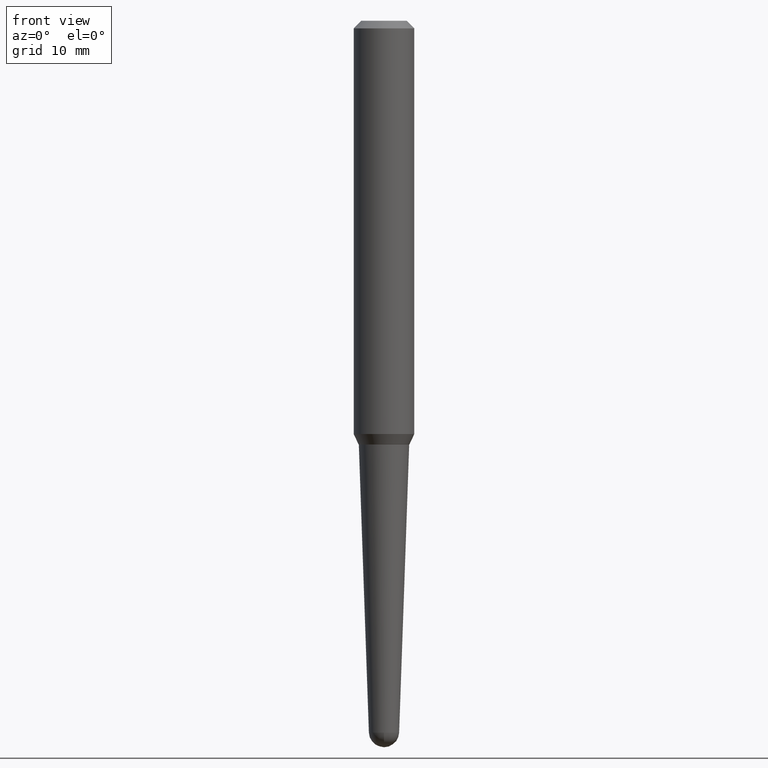
[diagram: clean part render]
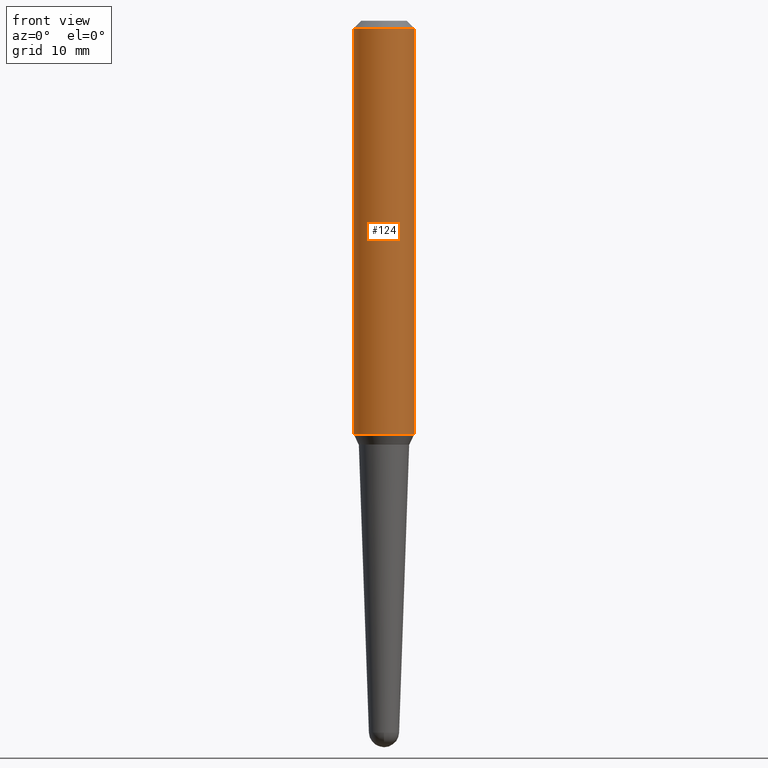
[diagram: same view with one face highlighted and labeled with its STEP entity id]
A machine part, front view. The second image highlights one B-rep face of the part: STEP entity #124.
In plain terms, the highlighted cylindrical surface (edge-blend (fillet) strip) has radius 3.175 mm, axis along (-0, 0, 1).
Its self-contained STEP definition (entity closure, byte-faithful):
#20 = VECTOR ( 'NONE', #116, 39.37007874015748143 ) ;
#22 = CARTESIAN_POINT ( 'NONE',  ( 0.1250000000000001943, -6.831515564972978588E-15, -1.706623822952039404 ) ) ;
#31 = ORIENTED_EDGE ( 'NONE', *, *, #47, .F. ) ;
#43 = DIRECTION ( 'NONE',  ( -2.445468806185136597E-29, 3.491481338843145583E-15, 1.000000000000000000 ) ) ;
#47 = EDGE_CURVE ( 'NONE', #313, #388, #54, .T. ) ;
#51 = EDGE_CURVE ( 'NONE', #136, #376, #429, .T. ) ;
#54 = CIRCLE ( 'NONE', #147, 0.1249999999999996808 ) ;
#68 = CARTESIAN_POINT ( 'NONE',  ( -0.1249999999999996808, -2.145698591350394182E-15, -0.03125000000000002082 ) ) ;
#85 = DIRECTION ( 'NONE',  ( -2.445468806185136877E-29, 3.491481338843145188E-15, 1.000000000000000000 ) ) ;
#86 = AXIS2_PLACEMENT_3D ( 'NONE', #258, #122, #408 ) ;
#90 = ORIENTED_EDGE ( 'NONE', *, *, #51, .T. ) ;
#113 = LINE ( 'NONE', #285, #20 ) ;
#116 = DIRECTION ( 'NONE',  ( -2.445468806185136877E-29, 3.491481338843145188E-15, 1.000000000000000000 ) ) ;
#120 = EDGE_LOOP ( 'NONE', ( #185, #90, #428, #31 ) ) ;
#121 = DIRECTION ( 'NONE',  ( 1.000000000000000000, -6.982962677686267499E-15, 0.000000000000000000 ) ) ;
#122 = DIRECTION ( 'NONE',  ( -2.445468806185136597E-29, 3.491481338843145583E-15, 1.000000000000000000 ) ) ;
#124 = ADVANCED_FACE ( 'NONE', ( #445 ), #261, .T. ) ;
#136 = VERTEX_POINT ( 'NONE', #202 ) ;
#147 = AXIS2_PLACEMENT_3D ( 'NONE', #405, #43, #259 ) ;
#157 = EDGE_CURVE ( 'NONE', #136, #313, #404, .T. ) ;
#185 = ORIENTED_EDGE ( 'NONE', *, *, #157, .F. ) ;
#202 = CARTESIAN_POINT ( 'NONE',  ( -0.1250000000000001943, -5.070466810562066862E-15, -1.706623822952039404 ) ) ;
#254 = CARTESIAN_POINT ( 'NONE',  ( 0.1249999999999996808, -9.819791265496294812E-16, -0.03125000000000002082 ) ) ;
#258 = CARTESIAN_POINT ( 'NONE',  ( -1.450455682483482035E-44, 2.070866303999251778E-30, 5.931196827434296760E-16 ) ) ;
#259 = DIRECTION ( 'NONE',  ( 1.000000000000000000, -6.982962677686266711E-15, 0.000000000000000000 ) ) ;
#261 = CYLINDRICAL_SURFACE ( 'NONE', #86, 0.1249999999999999306 ) ;
#285 = CARTESIAN_POINT ( 'NONE',  ( 0.1249999999999999306, -8.728703347107807750E-16, 5.931196827434357896E-16 ) ) ;
#313 = VERTEX_POINT ( 'NONE', #68 ) ;
#337 = DIRECTION ( 'NONE',  ( -2.445468806185136597E-29, 3.491481338843145583E-15, 1.000000000000000000 ) ) ;
#376 = VERTEX_POINT ( 'NONE', #22 ) ;
#377 = CARTESIAN_POINT ( 'NONE',  ( -0.1249999999999999306, 8.881784197001268101E-16, 5.931196827434234637E-16 ) ) ;
#388 = VERTEX_POINT ( 'NONE', #254 ) ;
#404 = LINE ( 'NONE', #377, #449 ) ;
#405 = CARTESIAN_POINT ( 'NONE',  ( 7.642090019328557120E-31, -1.091087918388483734E-16, -0.03125000000000002082 ) ) ;
#407 = AXIS2_PLACEMENT_3D ( 'NONE', #447, #337, #121 ) ;
#408 = DIRECTION ( 'NONE',  ( 1.000000000000000000, -6.982962677686266711E-15, 4.852736867747369010E-29 ) ) ;
#428 = ORIENTED_EDGE ( 'NONE', *, *, #442, .T. ) ;
#429 = CIRCLE ( 'NONE', #407, 0.1250000000000001943 ) ;
#442 = EDGE_CURVE ( 'NONE', #376, #388, #113, .T. ) ;
#445 = FACE_OUTER_BOUND ( 'NONE', #120, .T. ) ;
#447 = CARTESIAN_POINT ( 'NONE',  ( 4.173495322921637163E-29, -5.958645230262193672E-15, -1.706623822952039404 ) ) ;
#449 = VECTOR ( 'NONE', #85, 39.37007874015748143 ) ;